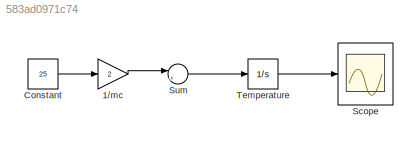
MODEL slx_583ad0971c74
KIND model
CONFIG AbsTol = auto
CONFIG EnableMultiTasking = off
CONFIG FixedStep = auto
CONFIG MaxStep = auto
CONFIG MinStep = auto
CONFIG RelTol = 1e-3
CONFIG SampleTimeConstraint = Unconstrained
CONFIG SolverName = VariableStepAuto
CONFIG StartTime = 0.0
CONFIG StopTime = 10.0
BLOCK [Gain] 1//mc
  Gain = 2
BLOCK [Constant] Constant
  Value = 25
BLOCK [Scope] Scope
  Floating = off
  NumInputPorts = 1
  ScopeSpecificationString = Simulink.scopes.TimeScopeBlockCfg('CurrentConfiguration', extmgr.ConfigurationSet(extmgr.Configuration('Core','General UI',true),extmgr.Configuration('Core','Source UI',true),extmgr.Configuration('Sources','WiredSimulink',true),extmgr.Configuration('Visuals','Time Domain',true,'SerializedDisplays',{struct('MinYLimReal','-62.5','MaxYLimReal','562.5','YLabelReal','','MinYLimMag','0.00000','MaxYLimMa...<+1434ch>
BLOCK [Sum] Sum
  Inputs = |+-
BLOCK [Integrator] Temperature
LINE 1//mc:1 -> Sum:1
LINE Constant:1 -> 1//mc:1
LINE Sum:1 -> Temperature:1
LINE Temperature:1 -> Scope:1
